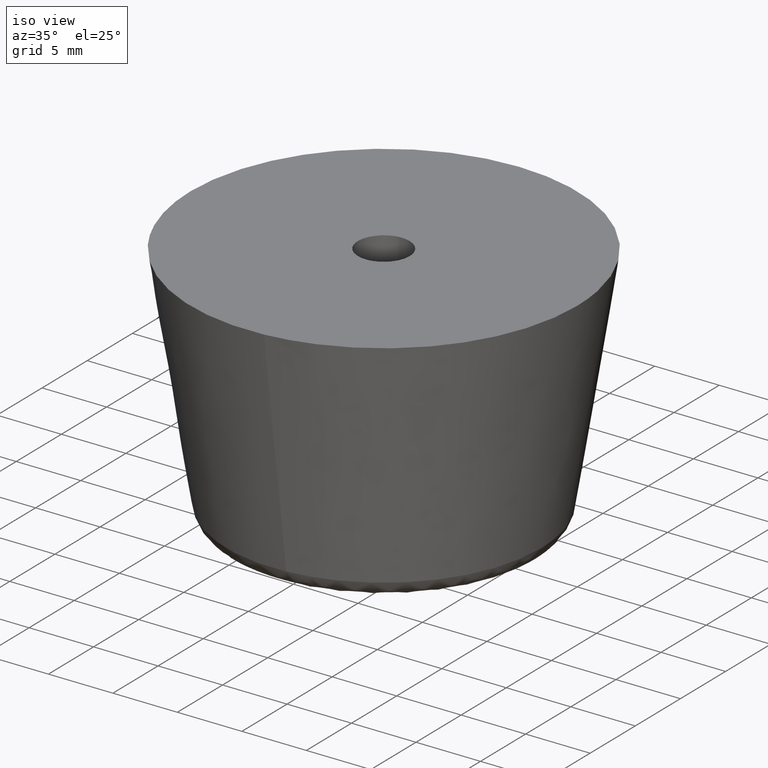
[diagram: clean part render]
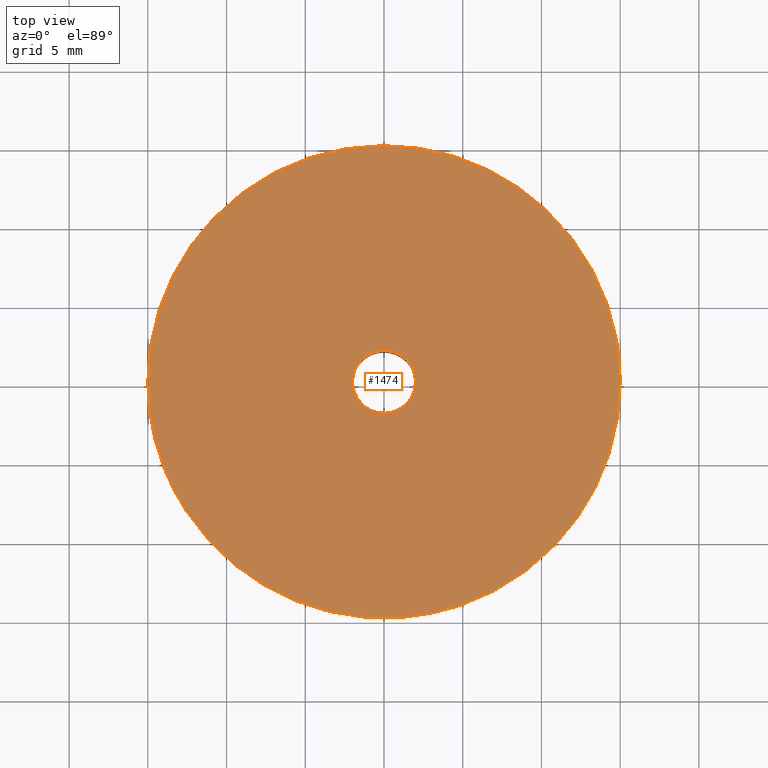
[diagram: tour spotlight — one face highlighted and labeled with its STEP entity id]
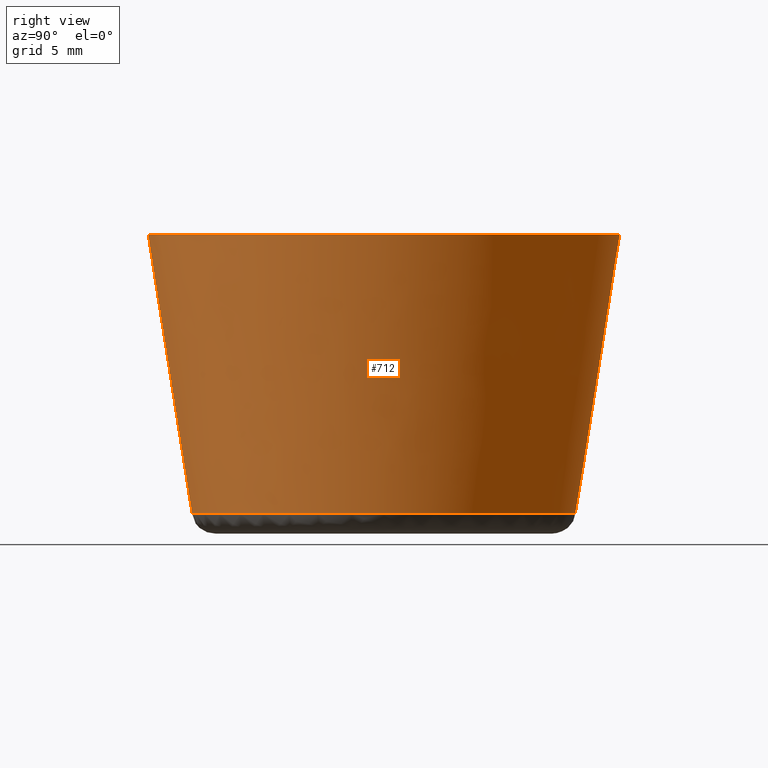
[diagram: tour spotlight — one face highlighted and labeled with its STEP entity id]
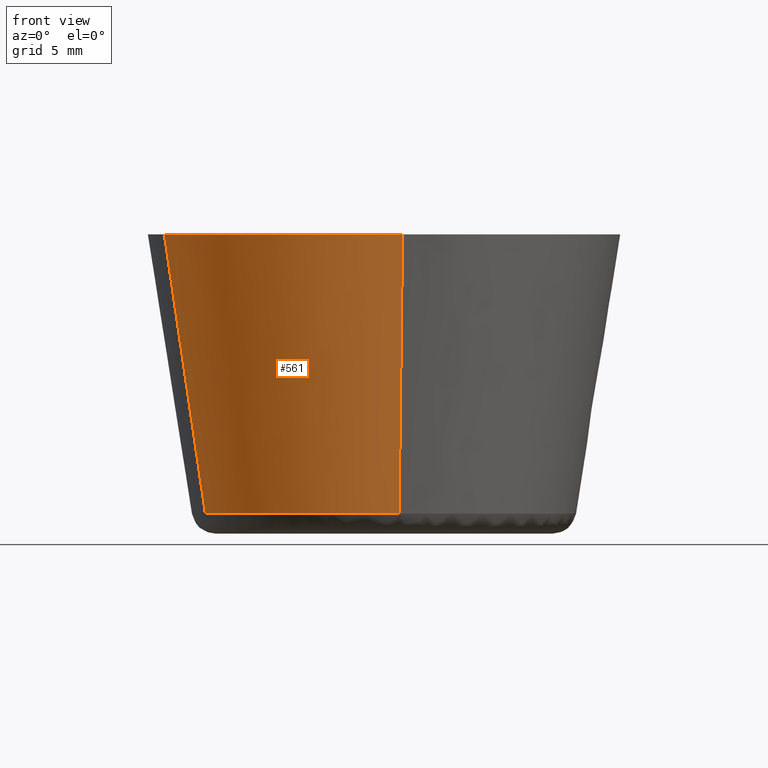
[diagram: tour spotlight — one face highlighted and labeled with its STEP entity id]
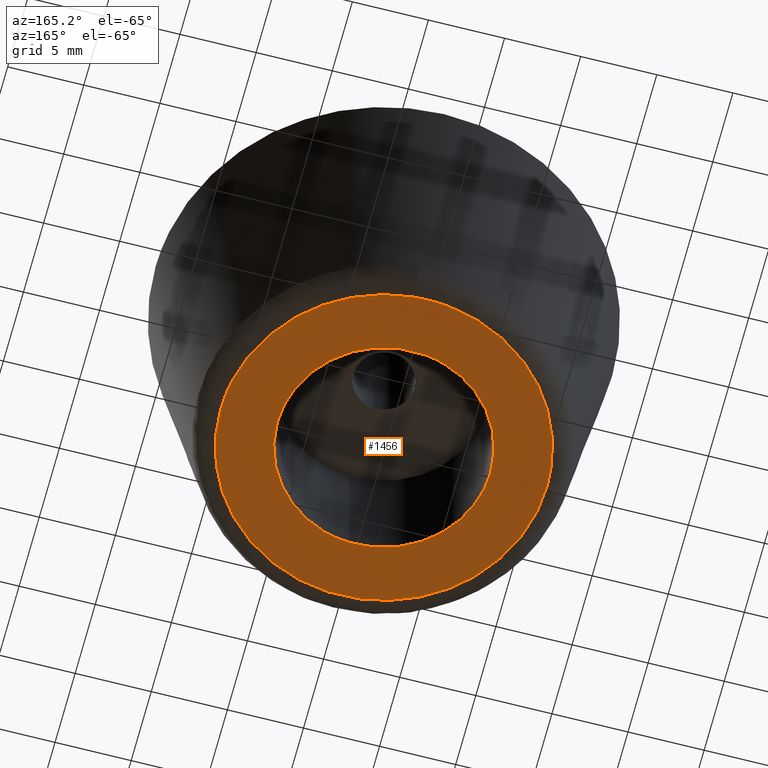
[diagram: tour spotlight — one face highlighted and labeled with its STEP entity id]
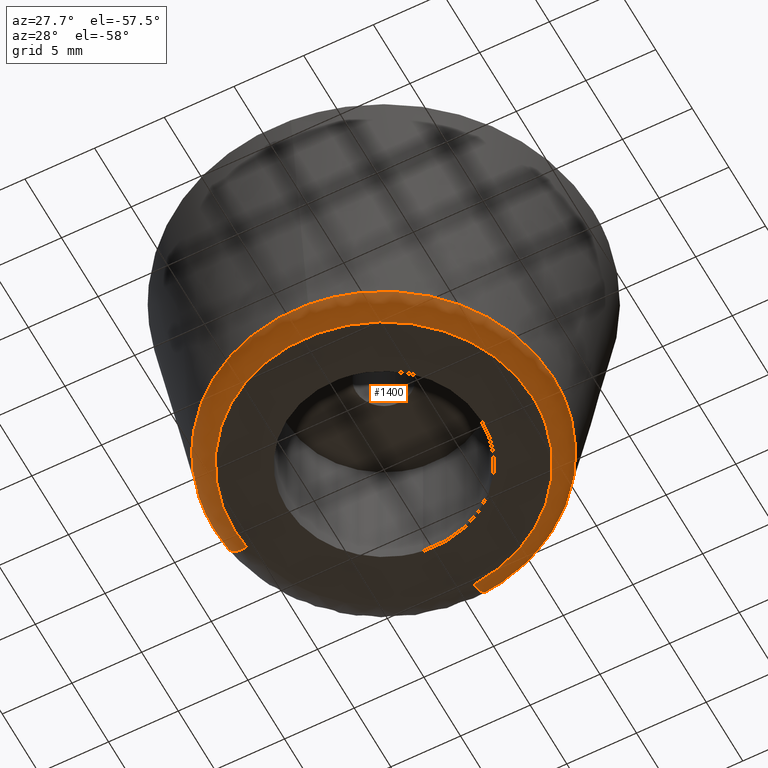
[diagram: tour spotlight — one face highlighted and labeled with its STEP entity id]
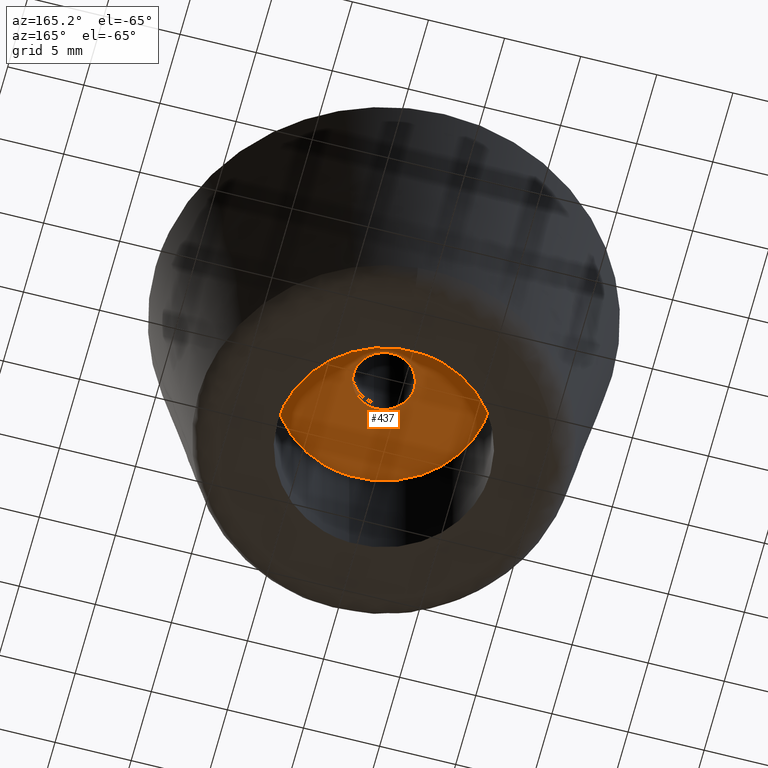
[diagram: tour spotlight — one face highlighted and labeled with its STEP entity id]
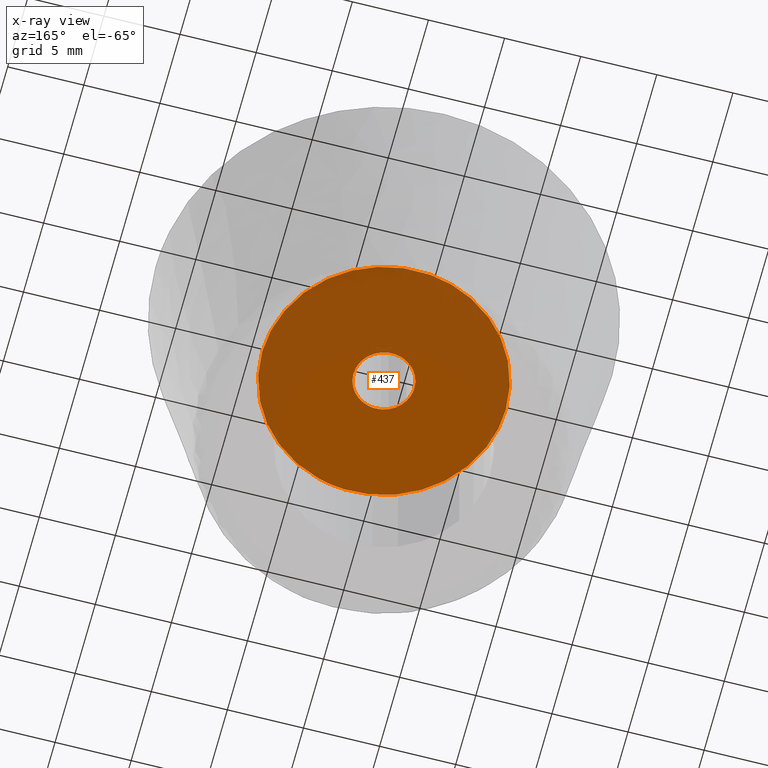
[diagram: x-ray of the same camera — body ghosted, this tour face saturated]
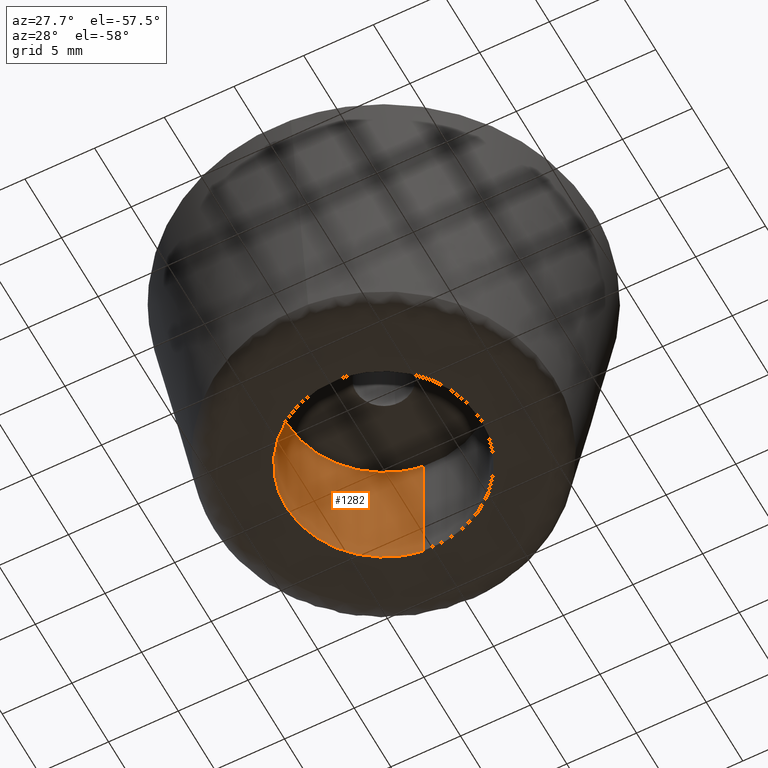
[diagram: tour spotlight — one face highlighted and labeled with its STEP entity id]
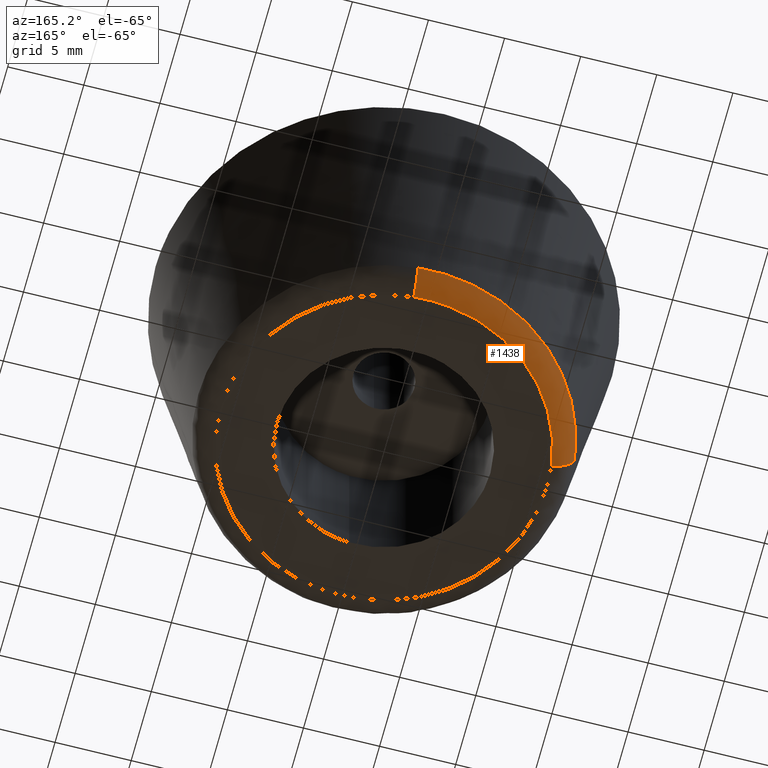
[diagram: tour spotlight — one face highlighted and labeled with its STEP entity id]
A machine part: a face-by-face anatomy tour. The part has 20 B-rep faces; the first image is the clean iso view, then the 8 largest visible faces are spotlighted one at a time (largest first), each with its STEP entity span.

Face 1 — top view, entity #1474. In plain terms, the highlighted face is a freeform B-spline surface patch.
Definition (entity closure, byte-faithful):
#530=CARTESIAN_POINT('',(1.176877791732224,-14.953760115481840,18.999996395936360));
#531=VERTEX_POINT('',#530);
#537=CARTESIAN_POINT('',(-13.947967667521180,-5.518530535782192,18.999996058260368));
#538=VERTEX_POINT('',#537);
#539=CARTESIAN_POINT('',(1.176877791732225,-14.953760115481847,18.999996395936357));
#540=CARTESIAN_POINT('',(0.589347257320484,-14.999999441685631,18.999996386957410));
#541=CARTESIAN_POINT('',(-0.000000010586503,-14.999999451175871,18.999996377485669));
#542=CARTESIAN_POINT('',(-10.196613008125857,-14.999999615371651,18.999996213610054));
#543=CARTESIAN_POINT('',(-13.947967667521178,-5.518530535782192,18.999996058260368));
#551=(BOUNDED_CURVE()B_SPLINE_CURVE(2,(#539,#540,#541,#542,#543),.UNSPECIFIED.,.F.,.U.)B_SPLINE_CURVE_WITH_KNOTS((3,2,3),(0.736331399214759,0.750000000000000,0.937532605535001),.UNSPECIFIED.)CURVE()GEOMETRIC_REPRESENTATION_ITEM()RATIONAL_B_SPLINE_CURVE((0.969723561905003,0.983986238077338,1.0,0.780291886129520,0.890203252669535))REPRESENTATION_ITEM(''));
#552=EDGE_CURVE('',#531,#538,#551,.T.);
#604=CARTESIAN_POINT('',(-15.0,0.0,19.0));
#605=VERTEX_POINT('',#604);
#606=CARTESIAN_POINT('',(-13.947967667521178,-5.518530535782192,18.999996058260368));
#607=CARTESIAN_POINT('',(-14.999999710635088,-2.859542937625609,18.999998029130182));
#608=CARTESIAN_POINT('',(-15.0,0.0,19.0));
#616=(BOUNDED_CURVE()B_SPLINE_CURVE(2,(#606,#607,#608),.UNSPECIFIED.,.F.,.U.)B_SPLINE_CURVE_WITH_KNOTS((3,3),(0.937532605535001,1.0),.UNSPECIFIED.)CURVE()GEOMETRIC_REPRESENTATION_ITEM()RATIONAL_B_SPLINE_CURVE((0.890203252669535,0.926814895057027,1.0))REPRESENTATION_ITEM(''));
#617=EDGE_CURVE('',#538,#605,#616,.T.);
#619=CARTESIAN_POINT('',(15.0,0.0,19.0));
#620=VERTEX_POINT('',#619);
#621=CARTESIAN_POINT('',(-15.0,0.0,19.0));
#622=CARTESIAN_POINT('',(-14.999999999999996,14.999999999999996,18.999999999999996));
#623=CARTESIAN_POINT('',(0.0,15.0,19.0));
#624=CARTESIAN_POINT('',(14.999999999999996,14.999999999999996,18.999999999999996));
#625=CARTESIAN_POINT('',(15.0,0.0,19.0));
#633=(BOUNDED_CURVE()B_SPLINE_CURVE(2,(#621,#622,#623,#624,#625),.UNSPECIFIED.,.F.,.U.)B_SPLINE_CURVE_WITH_KNOTS((3,2,3),(0.0,0.250000000000000,0.500000000000000),.UNSPECIFIED.)CURVE()GEOMETRIC_REPRESENTATION_ITEM()RATIONAL_B_SPLINE_CURVE((1.0,0.707106781186547,1.0,0.707106781186547,1.0))REPRESENTATION_ITEM(''));
#634=EDGE_CURVE('',#605,#620,#633,.T.);
#636=CARTESIAN_POINT('',(15.0,0.0,19.0));
#637=CARTESIAN_POINT('',(14.999999977675996,-13.865865089788093,18.999998197968186));
#638=CARTESIAN_POINT('',(1.176877791732225,-14.953760115481847,18.999996395936357));
#646=(BOUNDED_CURVE()B_SPLINE_CURVE(2,(#636,#637,#638),.UNSPECIFIED.,.F.,.U.)B_SPLINE_CURVE_WITH_KNOTS((3,3),(0.500000000000000,0.736331399214759),.UNSPECIFIED.)CURVE()GEOMETRIC_REPRESENTATION_ITEM()RATIONAL_B_SPLINE_CURVE((1.0,0.723120543109209,0.969723561905003))REPRESENTATION_ITEM(''));
#647=EDGE_CURVE('',#620,#531,#646,.T.);
#739=CARTESIAN_POINT('',(-0.236068469328979,1.986019052725495,19.0));
#740=VERTEX_POINT('',#739);
#741=CARTESIAN_POINT('',(2.0,0.0,19.0));
#742=VERTEX_POINT('',#741);
#743=CARTESIAN_POINT('',(-0.236068469328979,1.986019052725495,19.0));
#744=CARTESIAN_POINT('',(-0.118448239319446,2.000000000000000,19.000000000000004));
#745=CARTESIAN_POINT('',(0.0,2.0,19.0));
#746=CARTESIAN_POINT('',(2.000000000000000,2.000000000000000,18.999999999999993));
#747=CARTESIAN_POINT('',(2.0,0.0,19.0));
#755=(BOUNDED_CURVE()B_SPLINE_CURVE(2,(#743,#744,#745,#746,#747),.UNSPECIFIED.,.F.,.U.)B_SPLINE_CURVE_WITH_KNOTS((3,2,3),(0.229562473513013,0.250000000000000,0.500000000000000),.UNSPECIFIED.)CURVE()GEOMETRIC_REPRESENTATION_ITEM()RATIONAL_B_SPLINE_CURVE((0.956026754182728,0.976055948330564,1.0,0.707106781186548,1.0))REPRESENTATION_ITEM(''));
#756=EDGE_CURVE('',#740,#742,#755,.T.);
#797=CARTESIAN_POINT('',(0.122093391733323,-1.996269822364052,18.999999999999972));
#798=VERTEX_POINT('',#797);
#804=CARTESIAN_POINT('',(2.0,0.0,19.0));
#805=CARTESIAN_POINT('',(2.000000000000000,-1.881415615489676,19.000000000000004));
#806=CARTESIAN_POINT('',(0.122093391733323,-1.996269822364053,18.999999999999975));
#814=(BOUNDED_CURVE()B_SPLINE_CURVE(2,(#804,#805,#806),.UNSPECIFIED.,.F.,.U.)B_SPLINE_CURVE_WITH_KNOTS((3,3),(0.500000000000000,0.739333280955538),.UNSPECIFIED.)CURVE()GEOMETRIC_REPRESENTATION_ITEM()RATIONAL_B_SPLINE_CURVE((1.0,0.719603619886993,0.976072724738002))REPRESENTATION_ITEM(''));
#815=EDGE_CURVE('',#742,#798,#814,.T.);
#838=CARTESIAN_POINT('',(-2.0,0.0,19.0));
#839=VERTEX_POINT('',#838);
#840=CARTESIAN_POINT('',(-2.0,0.0,19.0));
#841=CARTESIAN_POINT('',(-2.000000000000000,1.776349051874881,18.999999999999996));
#842=CARTESIAN_POINT('',(-0.236068469328979,1.986019052725495,19.000000000000004));
#850=(BOUNDED_CURVE()B_SPLINE_CURVE(2,(#840,#841,#842),.UNSPECIFIED.,.F.,.U.)B_SPLINE_CURVE_WITH_KNOTS((3,3),(0.0,0.229562473513013),.UNSPECIFIED.)CURVE()GEOMETRIC_REPRESENTATION_ITEM()RATIONAL_B_SPLINE_CURVE((1.0,0.731050832855983,0.956026754182728))REPRESENTATION_ITEM(''));
#851=EDGE_CURVE('',#839,#740,#850,.T.);
#853=CARTESIAN_POINT('',(0.122093391733323,-1.996269822364053,18.999999999999975));
#854=CARTESIAN_POINT('',(0.061103677759777,-2.0,19.000000000000007));
#855=CARTESIAN_POINT('',(0.0,-2.0,19.0));
#856=CARTESIAN_POINT('',(-2.000000000000000,-2.000000000000000,18.999999999999993));
#857=CARTESIAN_POINT('',(-2.0,0.0,19.0));
#865=(BOUNDED_CURVE()B_SPLINE_CURVE(2,(#853,#854,#855,#856,#857),.UNSPECIFIED.,.F.,.U.)B_SPLINE_CURVE_WITH_KNOTS((3,2,3),(0.739333280955538,0.750000000000000,1.0),.UNSPECIFIED.)CURVE()GEOMETRIC_REPRESENTATION_ITEM()RATIONAL_B_SPLINE_CURVE((0.976072724738002,0.987503161299555,1.0,0.707106781186548,1.0))REPRESENTATION_ITEM(''));
#866=EDGE_CURVE('',#798,#839,#865,.T.);
#1457=CARTESIAN_POINT('',(16.498499941854181,-16.498186500424151,19.0));
#1458=CARTESIAN_POINT('',(-16.498500746516889,-16.498186500424151,19.0));
#1459=CARTESIAN_POINT('',(16.498499941854181,16.498485834950209,19.0));
#1460=CARTESIAN_POINT('',(-16.498500746516889,16.498485834950209,19.0));
#1461=B_SPLINE_SURFACE_WITH_KNOTS('',1,1,((#1457,#1459),(#1458,#1460)),.UNSPECIFIED.,.F.,.F.,.U.,(2,2),(2,2),(0.0,32.997000688371060),(0.0,32.996672335374363),.UNSPECIFIED.);
#1462=ORIENTED_EDGE('',*,*,#617,.F.);
#1463=ORIENTED_EDGE('',*,*,#552,.F.);
#1464=ORIENTED_EDGE('',*,*,#647,.F.);
#1465=ORIENTED_EDGE('',*,*,#634,.F.);
#1466=EDGE_LOOP('',(#1462,#1463,#1464,#1465));
#1467=FACE_OUTER_BOUND('',#1466,.T.);
#1468=ORIENTED_EDGE('',*,*,#815,.T.);
#1469=ORIENTED_EDGE('',*,*,#866,.T.);
#1470=ORIENTED_EDGE('',*,*,#851,.T.);
#1471=ORIENTED_EDGE('',*,*,#756,.T.);
#1472=EDGE_LOOP('',(#1468,#1469,#1470,#1471));
#1473=FACE_BOUND('',#1472,.T.);
#1474=ADVANCED_FACE('',(#1467,#1473),#1461,.F.);

Face 2 — right view, entity #712. In plain terms, the highlighted face is a freeform B-spline surface patch.
Definition (entity closure, byte-faithful):
#511=CARTESIAN_POINT('',(0.957188914024746,-12.162295832136421,1.266054161330059));
#512=VERTEX_POINT('',#511);
#513=CARTESIAN_POINT('',(-11.344257446646690,-4.488370761829868,1.266053794279891));
#514=VERTEX_POINT('',#513);
#530=CARTESIAN_POINT('',(1.176877791732224,-14.953760115481840,18.999996395936360));
#531=VERTEX_POINT('',#530);
#532=CARTESIAN_POINT('',(0.957188914024746,-12.162295832136421,1.266054161330059));
#533=CARTESIAN_POINT('',(1.176877791732224,-14.953760115481840,18.999996395936360));
#534=QUASI_UNIFORM_CURVE('',1,(#532,#533),.UNSPECIFIED.,.F.,.U.);
#535=EDGE_CURVE('',#512,#531,#534,.T.);
#537=CARTESIAN_POINT('',(-13.947967667521180,-5.518530535782192,18.999996058260368));
#538=VERTEX_POINT('',#537);
#554=CARTESIAN_POINT('',(-11.344257446646690,-4.488370761829868,1.266053794279891));
#555=CARTESIAN_POINT('',(-13.947967667521180,-5.518530535782192,18.999996058260368));
#556=QUASI_UNIFORM_CURVE('',1,(#554,#555),.UNSPECIFIED.,.F.,.U.);
#557=EDGE_CURVE('',#514,#538,#556,.T.);
#562=CARTESIAN_POINT('',(0.951701110803747,-12.092509161517210,0.822707399999999));
#563=CARTESIAN_POINT('',(13.044210272320953,-11.140808050713460,0.822707399999999));
#564=CARTESIAN_POINT('',(12.092509161517210,0.951701110803747,0.822707399999999));
#565=CARTESIAN_POINT('',(11.140808050713460,13.044210272320953,0.822707399999999));
#566=CARTESIAN_POINT('',(-0.951701110803747,12.092509161517210,0.822707399999999));
#567=CARTESIAN_POINT('',(-13.044210272320953,11.140808050713460,0.822707399999999));
#568=CARTESIAN_POINT('',(-12.092509161517210,-0.951701110803747,0.822707399999999));
#569=CARTESIAN_POINT('',(-11.949543569191624,-2.768251197121068,0.822707399999999));
#570=CARTESIAN_POINT('',(-11.279163913218644,-4.462619661636982,0.822707399999999));
#571=CARTESIAN_POINT('',(1.182516069045532,-15.025291277108909,19.454432315000009));
#572=CARTESIAN_POINT('',(16.207807346154446,-13.842775208063376,19.454432315000005));
#573=CARTESIAN_POINT('',(15.025291277108909,1.182516069045532,19.454432315000009));
#574=CARTESIAN_POINT('',(13.842775208063376,16.207807346154446,19.454432315000005));
#575=CARTESIAN_POINT('',(-1.182516069045532,15.025291277108909,19.454432315000009));
#576=CARTESIAN_POINT('',(-16.207807346154446,13.842775208063376,19.454432315000005));
#577=CARTESIAN_POINT('',(-15.025291277108909,-1.182516069045532,19.454432315000009));
#578=CARTESIAN_POINT('',(-14.847652406746720,-3.439631924970223,19.454432315000009));
#579=CARTESIAN_POINT('',(-14.014686356218773,-5.544933593139907,19.454432314999998));
#587=(BOUNDED_SURFACE()B_SPLINE_SURFACE(2,1,((#562,#571),(#563,#572),(#564,#573),(#565,#574),(#566,#575),(#567,#576),(#568,#577),(#569,#578),(#570,#579)),.UNSPECIFIED.,.F.,.F.,.U.)B_SPLINE_SURFACE_WITH_KNOTS((3,2,2,2,3),(2,2),(0.0,24.971697110648229,49.943394221296458,74.915091331944680,79.909430754074336),(0.0,18.862546482135301),.UNSPECIFIED.)GEOMETRIC_REPRESENTATION_ITEM()RATIONAL_B_SPLINE_SURFACE(((1.0,1.0),(0.707106781186548,0.707106781186548),(1.0,1.0),(0.707106781186548,0.707106781186548),(1.0,1.0),(0.707106781186548,0.707106781186548),(1.0,1.0),(0.941421356237310,0.941421356237310),(0.906274169979695,0.906274169979695)))REPRESENTATION_ITEM('')SURFACE());
#588=CARTESIAN_POINT('',(-12.199904000000000,0.0,1.266056000000000));
#589=VERTEX_POINT('',#588);
#590=CARTESIAN_POINT('',(-11.344257446646690,-4.488370761829868,1.266053794279891));
#591=CARTESIAN_POINT('',(-12.199903838077152,-2.325743978457342,1.266054897139945));
#592=CARTESIAN_POINT('',(-12.199904000000000,0.0,1.266056000000000));
#600=(BOUNDED_CURVE()B_SPLINE_CURVE(2,(#590,#591,#592),.UNSPECIFIED.,.F.,.U.)B_SPLINE_CURVE_WITH_KNOTS((3,3),(0.937532589075160,1.0),.UNSPECIFIED.)CURVE()GEOMETRIC_REPRESENTATION_ITEM()RATIONAL_B_SPLINE_CURVE((0.890203233375574,0.926814875773124,1.0))REPRESENTATION_ITEM(''));
#601=EDGE_CURVE('',#514,#589,#600,.T.);
#602=ORIENTED_EDGE('',*,*,#601,.F.);
#603=ORIENTED_EDGE('',*,*,#557,.T.);
#604=CARTESIAN_POINT('',(-15.0,0.0,19.0));
#605=VERTEX_POINT('',#604);
#606=CARTESIAN_POINT('',(-13.947967667521178,-5.518530535782192,18.999996058260368));
#607=CARTESIAN_POINT('',(-14.999999710635088,-2.859542937625609,18.999998029130182));
#608=CARTESIAN_POINT('',(-15.0,0.0,19.0));
#616=(BOUNDED_CURVE()B_SPLINE_CURVE(2,(#606,#607,#608),.UNSPECIFIED.,.F.,.U.)B_SPLINE_CURVE_WITH_KNOTS((3,3),(0.937532605535001,1.0),.UNSPECIFIED.)CURVE()GEOMETRIC_REPRESENTATION_ITEM()RATIONAL_B_SPLINE_CURVE((0.890203252669535,0.926814895057027,1.0))REPRESENTATION_ITEM(''));
#617=EDGE_CURVE('',#538,#605,#616,.T.);
#618=ORIENTED_EDGE('',*,*,#617,.T.);
#619=CARTESIAN_POINT('',(15.0,0.0,19.0));
#620=VERTEX_POINT('',#619);
#621=CARTESIAN_POINT('',(-15.0,0.0,19.0));
#622=CARTESIAN_POINT('',(-14.999999999999996,14.999999999999996,18.999999999999996));
#623=CARTESIAN_POINT('',(0.0,15.0,19.0));
#624=CARTESIAN_POINT('',(14.999999999999996,14.999999999999996,18.999999999999996));
#625=CARTESIAN_POINT('',(15.0,0.0,19.0));
#633=(BOUNDED_CURVE()B_SPLINE_CURVE(2,(#621,#622,#623,#624,#625),.UNSPECIFIED.,.F.,.U.)B_SPLINE_CURVE_WITH_KNOTS((3,2,3),(0.0,0.250000000000000,0.500000000000000),.UNSPECIFIED.)CURVE()GEOMETRIC_REPRESENTATION_ITEM()RATIONAL_B_SPLINE_CURVE((1.0,0.707106781186547,1.0,0.707106781186547,1.0))REPRESENTATION_ITEM(''));
#634=EDGE_CURVE('',#605,#620,#633,.T.);
#635=ORIENTED_EDGE('',*,*,#634,.T.);
#636=CARTESIAN_POINT('',(15.0,0.0,19.0));
#637=CARTESIAN_POINT('',(14.999999977675996,-13.865865089788093,18.999998197968186));
#638=CARTESIAN_POINT('',(1.176877791732225,-14.953760115481847,18.999996395936357));
#646=(BOUNDED_CURVE()B_SPLINE_CURVE(2,(#636,#637,#638),.UNSPECIFIED.,.F.,.U.)B_SPLINE_CURVE_WITH_KNOTS((3,3),(0.500000000000000,0.736331399214759),.UNSPECIFIED.)CURVE()GEOMETRIC_REPRESENTATION_ITEM()RATIONAL_B_SPLINE_CURVE((1.0,0.723120543109209,0.969723561905003))REPRESENTATION_ITEM(''));
#647=EDGE_CURVE('',#620,#531,#646,.T.);
#648=ORIENTED_EDGE('',*,*,#647,.T.);
#649=ORIENTED_EDGE('',*,*,#535,.F.);
#650=CARTESIAN_POINT('',(12.199904000000000,0.0,1.266056000000000));
#651=VERTEX_POINT('',#650);
#652=CARTESIAN_POINT('',(12.199904000000000,0.0,1.266056000000000));
#653=CARTESIAN_POINT('',(12.199903988611041,-11.277479296628552,1.266055080665030));
#654=CARTESIAN_POINT('',(0.957188914024746,-12.162295832136412,1.266054161330059));
#662=(BOUNDED_CURVE()B_SPLINE_CURVE(2,(#652,#653,#654),.UNSPECIFIED.,.F.,.U.)B_SPLINE_CURVE_WITH_KNOTS((3,3),(0.500000000000000,0.736331364045095),.UNSPECIFIED.)CURVE()GEOMETRIC_REPRESENTATION_ITEM()RATIONAL_B_SPLINE_CURVE((1.0,0.723120584313034,0.969723488508544))REPRESENTATION_ITEM(''));
#663=EDGE_CURVE('',#651,#512,#662,.T.);
#664=ORIENTED_EDGE('',*,*,#663,.F.);
#665=CARTESIAN_POINT('',(0.987191689687490,12.159897340991600,1.266056044159818));
#666=VERTEX_POINT('',#665);
#667=CARTESIAN_POINT('',(0.987191689687490,12.159897340991606,1.266056044159818));
#668=CARTESIAN_POINT('',(12.199903999999998,11.249602403097816,1.266056000000000));
#669=CARTESIAN_POINT('',(12.199904000000000,0.0,1.266056000000000));
#677=(BOUNDED_CURVE()B_SPLINE_CURVE(2,(#667,#668,#669),.UNSPECIFIED.,.F.,.U.)B_SPLINE_CURVE_WITH_KNOTS((3,3),(0.264091366876150,0.500000000000000),.UNSPECIFIED.)CURVE()GEOMETRIC_REPRESENTATION_ITEM()RATIONAL_B_SPLINE_CURVE((0.968842955716796,0.723615844393895,1.0))REPRESENTATION_ITEM(''));
#678=EDGE_CURVE('',#666,#651,#677,.T.);
#679=ORIENTED_EDGE('',*,*,#678,.F.);
#680=CARTESIAN_POINT('',(-12.083534031810270,1.681028279897632,1.266056044183165));
#681=VERTEX_POINT('',#680);
#682=CARTESIAN_POINT('',(-12.083534031810268,1.681028279897632,1.266056044183165));
#683=CARTESIAN_POINT('',(-10.620177029218109,12.199903999999998,1.266056000000000));
#684=CARTESIAN_POINT('',(0.0,12.199904000000000,1.266056000000000));
#685=CARTESIAN_POINT('',(0.494406494275795,12.199904000000000,1.266056000000001));
#686=CARTESIAN_POINT('',(0.987191689687490,12.159897340991600,1.266056044159819));
#694=(BOUNDED_CURVE()B_SPLINE_CURVE(2,(#682,#683,#684,#685,#686),.UNSPECIFIED.,.F.,.U.)B_SPLINE_CURVE_WITH_KNOTS((3,2,3),(0.023792609107088,0.250000000000000,0.264091366876150),.UNSPECIFIED.)CURVE()GEOMETRIC_REPRESENTATION_ITEM()RATIONAL_B_SPLINE_CURVE((0.949556158169242,0.734981556647928,1.0,0.983490936792653,0.968842955716795))REPRESENTATION_ITEM(''));
#695=EDGE_CURVE('',#681,#666,#694,.T.);
#696=ORIENTED_EDGE('',*,*,#695,.F.);
#697=CARTESIAN_POINT('',(-12.199904000000000,0.0,1.266056000000000));
#698=CARTESIAN_POINT('',(-12.199904000000004,0.844542022663018,1.266056000000000));
#699=CARTESIAN_POINT('',(-12.083534031810268,1.681028279897631,1.266056044183165));
#707=(BOUNDED_CURVE()B_SPLINE_CURVE(2,(#697,#698,#699),.UNSPECIFIED.,.F.,.U.)B_SPLINE_CURVE_WITH_KNOTS((3,3),(0.0,0.023792609107088),.UNSPECIFIED.)CURVE()GEOMETRIC_REPRESENTATION_ITEM()RATIONAL_B_SPLINE_CURVE((1.0,0.972125224538619,0.949556158169242))REPRESENTATION_ITEM(''));
#708=EDGE_CURVE('',#589,#681,#707,.T.);
#709=ORIENTED_EDGE('',*,*,#708,.F.);
#710=EDGE_LOOP('',(#602,#603,#618,#635,#648,#649,#664,#679,#696,#709));
#711=FACE_OUTER_BOUND('',#710,.T.);
#712=ADVANCED_FACE('',(#711),#587,.T.);

Face 3 — front view, entity #561. In plain terms, the highlighted face is a freeform B-spline surface patch.
Definition (entity closure, byte-faithful):
#497=CARTESIAN_POINT('',(-11.279163913218644,-4.462619661636982,0.822707399999999));
#498=CARTESIAN_POINT('',(-7.982197799690621,-12.795622254371716,0.822707399999999));
#499=CARTESIAN_POINT('',(0.951701110803747,-12.092509161517210,0.822707399999999));
#500=CARTESIAN_POINT('',(-14.014686356218773,-5.544933593139907,19.454432314999998));
#501=CARTESIAN_POINT('',(-9.918110904023626,-15.898929566712855,19.454432315000005));
#502=CARTESIAN_POINT('',(1.182516069045532,-15.025291277108909,19.454432315000009));
#510=(BOUNDED_SURFACE()B_SPLINE_SURFACE(2,1,((#497,#500),(#498,#501),(#499,#502)),.UNSPECIFIED.,.F.,.F.,.U.)B_SPLINE_SURFACE_WITH_KNOTS((3,3),(2,2),(0.0,19.841189292702420),(0.0,18.862546482135301),.UNSPECIFIED.)GEOMETRIC_REPRESENTATION_ITEM()RATIONAL_B_SPLINE_SURFACE(((0.906274169979695,0.906274169979695),(0.765685424949238,0.765685424949238),(1.0,1.0)))REPRESENTATION_ITEM('')SURFACE());
#511=CARTESIAN_POINT('',(0.957188914024746,-12.162295832136421,1.266054161330059));
#512=VERTEX_POINT('',#511);
#513=CARTESIAN_POINT('',(-11.344257446646690,-4.488370761829868,1.266053794279891));
#514=VERTEX_POINT('',#513);
#515=CARTESIAN_POINT('',(0.957188914024746,-12.162295832136412,1.266054161330059));
#516=CARTESIAN_POINT('',(0.479333260141173,-12.199903714866691,1.266054151570009));
#517=CARTESIAN_POINT('',(-3.838272E-009,-12.199903719390910,1.266054141274304));
#518=CARTESIAN_POINT('',(-8.293179128497764,-12.199903797666687,1.266053963143287));
#519=CARTESIAN_POINT('',(-11.344257446646690,-4.488370761829868,1.266053794279891));
#527=(BOUNDED_CURVE()B_SPLINE_CURVE(2,(#515,#516,#517,#518,#519),.UNSPECIFIED.,.F.,.U.)B_SPLINE_CURVE_WITH_KNOTS((3,2,3),(0.736331364045095,0.750000000000000,0.937532589075160),.UNSPECIFIED.)CURVE()GEOMETRIC_REPRESENTATION_ITEM()RATIONAL_B_SPLINE_CURVE((0.969723488508544,0.983986196873514,1.0,0.780291905413423,0.890203233375574))REPRESENTATION_ITEM(''));
#528=EDGE_CURVE('',#512,#514,#527,.T.);
#529=ORIENTED_EDGE('',*,*,#528,.F.);
#530=CARTESIAN_POINT('',(1.176877791732224,-14.953760115481840,18.999996395936360));
#531=VERTEX_POINT('',#530);
#532=CARTESIAN_POINT('',(0.957188914024746,-12.162295832136421,1.266054161330059));
#533=CARTESIAN_POINT('',(1.176877791732224,-14.953760115481840,18.999996395936360));
#534=QUASI_UNIFORM_CURVE('',1,(#532,#533),.UNSPECIFIED.,.F.,.U.);
#535=EDGE_CURVE('',#512,#531,#534,.T.);
#536=ORIENTED_EDGE('',*,*,#535,.T.);
#537=CARTESIAN_POINT('',(-13.947967667521180,-5.518530535782192,18.999996058260368));
#538=VERTEX_POINT('',#537);
#539=CARTESIAN_POINT('',(1.176877791732225,-14.953760115481847,18.999996395936357));
#540=CARTESIAN_POINT('',(0.589347257320484,-14.999999441685631,18.999996386957410));
#541=CARTESIAN_POINT('',(-0.000000010586503,-14.999999451175871,18.999996377485669));
#542=CARTESIAN_POINT('',(-10.196613008125857,-14.999999615371651,18.999996213610054));
#543=CARTESIAN_POINT('',(-13.947967667521178,-5.518530535782192,18.999996058260368));
#551=(BOUNDED_CURVE()B_SPLINE_CURVE(2,(#539,#540,#541,#542,#543),.UNSPECIFIED.,.F.,.U.)B_SPLINE_CURVE_WITH_KNOTS((3,2,3),(0.736331399214759,0.750000000000000,0.937532605535001),.UNSPECIFIED.)CURVE()GEOMETRIC_REPRESENTATION_ITEM()RATIONAL_B_SPLINE_CURVE((0.969723561905003,0.983986238077338,1.0,0.780291886129520,0.890203252669535))REPRESENTATION_ITEM(''));
#552=EDGE_CURVE('',#531,#538,#551,.T.);
#553=ORIENTED_EDGE('',*,*,#552,.T.);
#554=CARTESIAN_POINT('',(-11.344257446646690,-4.488370761829868,1.266053794279891));
#555=CARTESIAN_POINT('',(-13.947967667521180,-5.518530535782192,18.999996058260368));
#556=QUASI_UNIFORM_CURVE('',1,(#554,#555),.UNSPECIFIED.,.F.,.U.);
#557=EDGE_CURVE('',#514,#538,#556,.T.);
#558=ORIENTED_EDGE('',*,*,#557,.F.);
#559=EDGE_LOOP('',(#529,#536,#553,#558));
#560=FACE_OUTER_BOUND('',#559,.T.);
#561=ADVANCED_FACE('',(#560),#510,.T.);

Face 4 — auxiliary view, entity #1456. In plain terms, the highlighted face is a freeform B-spline surface patch.
Definition (entity closure, byte-faithful):
#1115=CARTESIAN_POINT('',(-0.826229466061572,6.951067894166087,-2.011735E-014));
#1116=VERTEX_POINT('',#1115);
#1117=CARTESIAN_POINT('',(7.0,0.0,0.0));
#1118=VERTEX_POINT('',#1117);
#1119=CARTESIAN_POINT('',(-0.826229466061572,6.951067894166087,-2.011735E-014));
#1120=CARTESIAN_POINT('',(-0.414563695504101,7.0,0.0));
#1121=CARTESIAN_POINT('',(0.0,7.0,0.0));
#1122=CARTESIAN_POINT('',(6.999999999999999,6.999999999999999,0.0));
#1123=CARTESIAN_POINT('',(7.0,0.0,0.0));
#1131=(BOUNDED_CURVE()B_SPLINE_CURVE(2,(#1119,#1120,#1121,#1122,#1123),.UNSPECIFIED.,.F.,.U.)B_SPLINE_CURVE_WITH_KNOTS((3,2,3),(0.229562720940656,0.250000000000000,0.500000000000000),.UNSPECIFIED.)CURVE()GEOMETRIC_REPRESENTATION_ITEM()RATIONAL_B_SPLINE_CURVE((0.956027239151607,0.976056238210079,1.0,0.707106781186547,1.0))REPRESENTATION_ITEM(''));
#1132=EDGE_CURVE('',#1116,#1118,#1131,.T.);
#1134=CARTESIAN_POINT('',(0.427329286051951,-6.986944230575470,-2.534084E-014));
#1135=VERTEX_POINT('',#1134);
#1136=CARTESIAN_POINT('',(7.0,0.0,0.0));
#1137=CARTESIAN_POINT('',(7.000000000000001,-6.584952373920931,0.0));
#1138=CARTESIAN_POINT('',(0.427329286051951,-6.986944230575470,-2.534084E-014));
#1146=(BOUNDED_CURVE()B_SPLINE_CURVE(2,(#1136,#1137,#1138),.UNSPECIFIED.,.F.,.U.)B_SPLINE_CURVE_WITH_KNOTS((3,3),(0.500000000000000,0.739333221315991),.UNSPECIFIED.)CURVE()GEOMETRIC_REPRESENTATION_ITEM()RATIONAL_B_SPLINE_CURVE((1.0,0.719603689759067,0.976072596918779))REPRESENTATION_ITEM(''));
#1147=EDGE_CURVE('',#1118,#1135,#1146,.T.);
#1218=CARTESIAN_POINT('',(-7.0,0.0,0.0));
#1219=VERTEX_POINT('',#1218);
#1220=CARTESIAN_POINT('',(-7.0,0.0,0.0));
#1221=CARTESIAN_POINT('',(-6.999999999999999,6.217230847908600,0.0));
#1222=CARTESIAN_POINT('',(-0.826229466061572,6.951067894166087,-2.011735E-014));
#1230=(BOUNDED_CURVE()B_SPLINE_CURVE(2,(#1220,#1221,#1222),.UNSPECIFIED.,.F.,.U.)B_SPLINE_CURVE_WITH_KNOTS((3,3),(0.0,0.229562720940656),.UNSPECIFIED.)CURVE()GEOMETRIC_REPRESENTATION_ITEM()RATIONAL_B_SPLINE_CURVE((1.0,0.731050542976468,0.956027239151607))REPRESENTATION_ITEM(''));
#1231=EDGE_CURVE('',#1219,#1116,#1230,.T.);
#1265=CARTESIAN_POINT('',(0.427329286051951,-6.986944230575470,-2.534084E-014));
#1266=CARTESIAN_POINT('',(0.213864083037262,-7.0,0.0));
#1267=CARTESIAN_POINT('',(0.0,-7.0,0.0));
#1268=CARTESIAN_POINT('',(-6.999999999999999,-6.999999999999999,0.0));
#1269=CARTESIAN_POINT('',(-7.0,0.0,0.0));
#1277=(BOUNDED_CURVE()B_SPLINE_CURVE(2,(#1265,#1266,#1267,#1268,#1269),.UNSPECIFIED.,.F.,.U.)B_SPLINE_CURVE_WITH_KNOTS((3,2,3),(0.739333221315991,0.750000000000000,1.0),.UNSPECIFIED.)CURVE()GEOMETRIC_REPRESENTATION_ITEM()RATIONAL_B_SPLINE_CURVE((0.976072596918779,0.987503091427480,1.0,0.707106781186547,1.0))REPRESENTATION_ITEM(''));
#1278=EDGE_CURVE('',#1135,#1219,#1277,.T.);
#1318=CARTESIAN_POINT('',(0.867299976864796,10.683111286328881,1.902612E-016));
#1319=VERTEX_POINT('',#1318);
#1320=CARTESIAN_POINT('',(10.718259000000000,0.0,0.0));
#1321=VERTEX_POINT('',#1320);
#1322=CARTESIAN_POINT('',(0.867299976864796,10.683111286328876,1.902612E-016));
#1323=CARTESIAN_POINT('',(10.718259000000002,9.883368934888546,0.0));
#1324=CARTESIAN_POINT('',(10.718259000000000,0.0,0.0));
#1332=(BOUNDED_CURVE()B_SPLINE_CURVE(2,(#1322,#1323,#1324),.UNSPECIFIED.,.F.,.U.)B_SPLINE_CURVE_WITH_KNOTS((3,3),(0.264091366877852,0.500000000000000),.UNSPECIFIED.)CURVE()GEOMETRIC_REPRESENTATION_ITEM()RATIONAL_B_SPLINE_CURVE((0.968842955713257,0.723615844395889,1.0))REPRESENTATION_ITEM(''));
#1333=EDGE_CURVE('',#1319,#1321,#1332,.T.);
#1353=CARTESIAN_POINT('',(-10.616022090534811,1.476872023326135,1.859814E-016));
#1354=VERTEX_POINT('',#1353);
#1368=CARTESIAN_POINT('',(-10.718259000000000,0.0,0.0));
#1369=VERTEX_POINT('',#1368);
#1370=CARTESIAN_POINT('',(-10.718259000000000,0.0,0.0));
#1371=CARTESIAN_POINT('',(-10.718259000000003,0.741974702060796,0.0));
#1372=CARTESIAN_POINT('',(-10.616022090534816,1.476872023326136,1.859814E-016));
#1380=(BOUNDED_CURVE()B_SPLINE_CURVE(2,(#1370,#1371,#1372),.UNSPECIFIED.,.F.,.U.)B_SPLINE_CURVE_WITH_KNOTS((3,3),(0.0,0.023792609107814),.UNSPECIFIED.)CURVE()GEOMETRIC_REPRESENTATION_ITEM()RATIONAL_B_SPLINE_CURVE((1.0,0.972125224537768,0.949556158167864))REPRESENTATION_ITEM(''));
#1381=EDGE_CURVE('',#1369,#1354,#1380,.T.);
#1383=CARTESIAN_POINT('',(10.718259000000000,0.0,0.0));
#1384=CARTESIAN_POINT('',(10.718259000000002,-10.718259000000002,0.0));
#1385=CARTESIAN_POINT('',(0.0,-10.718259000000000,0.0));
#1386=CARTESIAN_POINT('',(-10.718259000000002,-10.718259000000002,0.0));
#1387=CARTESIAN_POINT('',(-10.718259000000000,0.0,0.0));
#1395=(BOUNDED_CURVE()B_SPLINE_CURVE(2,(#1383,#1384,#1385,#1386,#1387),.UNSPECIFIED.,.F.,.U.)B_SPLINE_CURVE_WITH_KNOTS((3,2,3),(0.500000000000000,0.750000000000000,1.0),.UNSPECIFIED.)CURVE()GEOMETRIC_REPRESENTATION_ITEM()RATIONAL_B_SPLINE_CURVE((1.0,0.707106781186547,1.0,0.707106781186547,1.0))REPRESENTATION_ITEM(''));
#1396=EDGE_CURVE('',#1321,#1369,#1395,.T.);
#1418=CARTESIAN_POINT('',(-10.616022090534816,1.476872023326136,1.859814E-016));
#1419=CARTESIAN_POINT('',(-9.330385552584110,10.718259000000002,0.0));
#1420=CARTESIAN_POINT('',(0.0,10.718259000000000,0.0));
#1421=CARTESIAN_POINT('',(0.434362176749984,10.718259000000005,0.0));
#1422=CARTESIAN_POINT('',(0.867299976864796,10.683111286328879,1.902612E-016));
#1430=(BOUNDED_CURVE()B_SPLINE_CURVE(2,(#1418,#1419,#1420,#1421,#1422),.UNSPECIFIED.,.F.,.U.)B_SPLINE_CURVE_WITH_KNOTS((3,2,3),(0.023792609107814,0.250000000000000,0.264091366877852),.UNSPECIFIED.)CURVE()GEOMETRIC_REPRESENTATION_ITEM()RATIONAL_B_SPLINE_CURVE((0.949556158167864,0.734981556648779,1.0,0.983490936790658,0.968842955713257))REPRESENTATION_ITEM(''));
#1431=EDGE_CURVE('',#1354,#1319,#1430,.T.);
#1439=CARTESIAN_POINT('',(-11.789013032551869,-11.788907021367921,0.0));
#1440=CARTESIAN_POINT('',(11.789013607524090,-11.788907021367921,0.0));
#1441=CARTESIAN_POINT('',(-11.789013032551869,11.786785250305270,0.0));
#1442=CARTESIAN_POINT('',(11.789013607524090,11.786785250305270,0.0));
#1443=B_SPLINE_SURFACE_WITH_KNOTS('',1,1,((#1439,#1441),(#1440,#1442)),.UNSPECIFIED.,.F.,.F.,.U.,(2,2),(2,2),(0.0,23.578026640075961),(0.0,23.575692271673191),.UNSPECIFIED.);
#1444=ORIENTED_EDGE('',*,*,#1381,.T.);
#1445=ORIENTED_EDGE('',*,*,#1431,.T.);
#1446=ORIENTED_EDGE('',*,*,#1333,.T.);
#1447=ORIENTED_EDGE('',*,*,#1396,.T.);
#1448=EDGE_LOOP('',(#1444,#1445,#1446,#1447));
#1449=FACE_OUTER_BOUND('',#1448,.T.);
#1450=ORIENTED_EDGE('',*,*,#1147,.F.);
#1451=ORIENTED_EDGE('',*,*,#1132,.F.);
#1452=ORIENTED_EDGE('',*,*,#1231,.F.);
#1453=ORIENTED_EDGE('',*,*,#1278,.F.);
#1454=EDGE_LOOP('',(#1450,#1451,#1452,#1453));
#1455=FACE_BOUND('',#1454,.T.);
#1456=ADVANCED_FACE('',(#1449,#1455),#1443,.F.);

Face 5 — auxiliary view, entity #1400. In plain terms, the highlighted face is a freeform B-spline surface patch.
Definition (entity closure, byte-faithful):
#511=CARTESIAN_POINT('',(0.957188914024746,-12.162295832136421,1.266054161330059));
#512=VERTEX_POINT('',#511);
#513=CARTESIAN_POINT('',(-11.344257446646690,-4.488370761829868,1.266053794279891));
#514=VERTEX_POINT('',#513);
#515=CARTESIAN_POINT('',(0.957188914024746,-12.162295832136412,1.266054161330059));
#516=CARTESIAN_POINT('',(0.479333260141173,-12.199903714866691,1.266054151570009));
#517=CARTESIAN_POINT('',(-3.838272E-009,-12.199903719390910,1.266054141274304));
#518=CARTESIAN_POINT('',(-8.293179128497764,-12.199903797666687,1.266053963143287));
#519=CARTESIAN_POINT('',(-11.344257446646690,-4.488370761829868,1.266053794279891));
#527=(BOUNDED_CURVE()B_SPLINE_CURVE(2,(#515,#516,#517,#518,#519),.UNSPECIFIED.,.F.,.U.)B_SPLINE_CURVE_WITH_KNOTS((3,2,3),(0.736331364045095,0.750000000000000,0.937532589075160),.UNSPECIFIED.)CURVE()GEOMETRIC_REPRESENTATION_ITEM()RATIONAL_B_SPLINE_CURVE((0.969723488508544,0.983986196873514,1.0,0.780291905413423,0.890203233375574))REPRESENTATION_ITEM(''));
#528=EDGE_CURVE('',#512,#514,#527,.T.);
#588=CARTESIAN_POINT('',(-12.199904000000000,0.0,1.266056000000000));
#589=VERTEX_POINT('',#588);
#590=CARTESIAN_POINT('',(-11.344257446646690,-4.488370761829868,1.266053794279891));
#591=CARTESIAN_POINT('',(-12.199903838077152,-2.325743978457342,1.266054897139945));
#592=CARTESIAN_POINT('',(-12.199904000000000,0.0,1.266056000000000));
#600=(BOUNDED_CURVE()B_SPLINE_CURVE(2,(#590,#591,#592),.UNSPECIFIED.,.F.,.U.)B_SPLINE_CURVE_WITH_KNOTS((3,3),(0.937532589075160,1.0),.UNSPECIFIED.)CURVE()GEOMETRIC_REPRESENTATION_ITEM()RATIONAL_B_SPLINE_CURVE((0.890203233375574,0.926814875773124,1.0))REPRESENTATION_ITEM(''));
#601=EDGE_CURVE('',#514,#589,#600,.T.);
#650=CARTESIAN_POINT('',(12.199904000000000,0.0,1.266056000000000));
#651=VERTEX_POINT('',#650);
#652=CARTESIAN_POINT('',(12.199904000000000,0.0,1.266056000000000));
#653=CARTESIAN_POINT('',(12.199903988611041,-11.277479296628552,1.266055080665030));
#654=CARTESIAN_POINT('',(0.957188914024746,-12.162295832136412,1.266054161330059));
#662=(BOUNDED_CURVE()B_SPLINE_CURVE(2,(#652,#653,#654),.UNSPECIFIED.,.F.,.U.)B_SPLINE_CURVE_WITH_KNOTS((3,3),(0.500000000000000,0.736331364045095),.UNSPECIFIED.)CURVE()GEOMETRIC_REPRESENTATION_ITEM()RATIONAL_B_SPLINE_CURVE((1.0,0.723120584313034,0.969723488508544))REPRESENTATION_ITEM(''));
#663=EDGE_CURVE('',#651,#512,#662,.T.);
#665=CARTESIAN_POINT('',(0.987191689687490,12.159897340991600,1.266056044159818));
#666=VERTEX_POINT('',#665);
#667=CARTESIAN_POINT('',(0.987191689687490,12.159897340991606,1.266056044159818));
#668=CARTESIAN_POINT('',(12.199903999999998,11.249602403097816,1.266056000000000));
#669=CARTESIAN_POINT('',(12.199904000000000,0.0,1.266056000000000));
#677=(BOUNDED_CURVE()B_SPLINE_CURVE(2,(#667,#668,#669),.UNSPECIFIED.,.F.,.U.)B_SPLINE_CURVE_WITH_KNOTS((3,3),(0.264091366876150,0.500000000000000),.UNSPECIFIED.)CURVE()GEOMETRIC_REPRESENTATION_ITEM()RATIONAL_B_SPLINE_CURVE((0.968842955716796,0.723615844393895,1.0))REPRESENTATION_ITEM(''));
#678=EDGE_CURVE('',#666,#651,#677,.T.);
#680=CARTESIAN_POINT('',(-12.083534031810270,1.681028279897632,1.266056044183165));
#681=VERTEX_POINT('',#680);
#697=CARTESIAN_POINT('',(-12.199904000000000,0.0,1.266056000000000));
#698=CARTESIAN_POINT('',(-12.199904000000004,0.844542022663018,1.266056000000000));
#699=CARTESIAN_POINT('',(-12.083534031810268,1.681028279897631,1.266056044183165));
#707=(BOUNDED_CURVE()B_SPLINE_CURVE(2,(#697,#698,#699),.UNSPECIFIED.,.F.,.U.)B_SPLINE_CURVE_WITH_KNOTS((3,3),(0.0,0.023792609107088),.UNSPECIFIED.)CURVE()GEOMETRIC_REPRESENTATION_ITEM()RATIONAL_B_SPLINE_CURVE((1.0,0.972125224538619,0.949556158169242))REPRESENTATION_ITEM(''));
#708=EDGE_CURVE('',#589,#681,#707,.T.);
#1283=CARTESIAN_POINT('',(0.988159606704503,12.171811490367817,1.361563551415024));
#1284=CARTESIAN_POINT('',(1.336511286042286,12.143530814256323,1.361563551415024));
#1285=CARTESIAN_POINT('',(1.682675342624022,12.095373415347600,1.361563551415024));
#1286=CARTESIAN_POINT('',(13.778048757971625,10.412698072723579,1.361563551415024));
#1287=CARTESIAN_POINT('',(12.095373415347600,-1.682675342624021,1.361563551415024));
#1288=CARTESIAN_POINT('',(10.412698072723579,-13.778048757971625,1.361563551415024));
#1289=CARTESIAN_POINT('',(-1.682675342624024,-12.095373415347600,1.361563551415024));
#1290=CARTESIAN_POINT('',(-13.778048757971625,-10.412698072723579,1.361563551415024));
#1291=CARTESIAN_POINT('',(-12.095373415347600,1.682675342624024,1.361563551415024));
#1292=CARTESIAN_POINT('',(0.977271143380885,12.037691129551945,-0.090228850852433));
#1293=CARTESIAN_POINT('',(1.321784359318164,12.009722076282065,-0.090228850852433));
#1294=CARTESIAN_POINT('',(1.664134057765373,11.962095320468064,-0.090228850852433));
#1295=CARTESIAN_POINT('',(13.626229378233436,10.297961262702692,-0.090228850852433));
#1296=CARTESIAN_POINT('',(11.962095320468064,-1.664134057765372,-0.090228850852433));
#1297=CARTESIAN_POINT('',(10.297961262702691,-13.626229378233436,-0.090228850852433));
#1298=CARTESIAN_POINT('',(-1.664134057765373,-11.962095320468064,-0.090228850852433));
#1299=CARTESIAN_POINT('',(-13.626229378233436,-10.297961262702691,-0.090228850852433));
#1300=CARTESIAN_POINT('',(-11.962095320468064,1.664134057765373,-0.090228850852433));
#1301=CARTESIAN_POINT('',(0.859533232855033,10.587435884885780,0.003074519095970));
#1302=CARTESIAN_POINT('',(1.162540806813903,10.562836436779913,0.003074519095970));
#1303=CARTESIAN_POINT('',(1.463645515641460,10.520947571368847,0.003074519095970));
#1304=CARTESIAN_POINT('',(11.984593087010301,9.057302055727387,0.003074519095970));
#1305=CARTESIAN_POINT('',(10.520947571368847,-1.463645515641460,0.003074519095970));
#1306=CARTESIAN_POINT('',(9.057302055727382,-11.984593087010305,0.003074519095970));
#1307=CARTESIAN_POINT('',(-1.463645515641461,-10.520947571368847,0.003074519095970));
#1308=CARTESIAN_POINT('',(-11.984593087010305,-9.057302055727384,0.003074519095970));
#1309=CARTESIAN_POINT('',(-10.520947571368847,1.463645515641461,0.003074519095970));
#1317=(BOUNDED_SURFACE()B_SPLINE_SURFACE(2,2,((#1283,#1292,#1301),(#1284,#1293,#1302),(#1285,#1294,#1303),(#1286,#1295,#1304),(#1287,#1296,#1305),(#1288,#1297,#1306),(#1289,#1298,#1307),(#1290,#1299,#1308),(#1291,#1300,#1309)),.UNSPECIFIED.,.F.,.F.,.U.)B_SPLINE_SURFACE_WITH_KNOTS((3,2,2,2,3),(3,3),(0.0,0.809329922825767,21.042597289417369,41.275864656008970,61.509132022600568),(0.0,2.435542611362533),.UNSPECIFIED.)GEOMETRIC_REPRESENTATION_ITEM()RATIONAL_B_SPLINE_SURFACE(((0.895309399086273,0.642738713962678,0.897369936678558),(0.905181521881031,0.649825867873560,0.907264779976590),(0.915912089246335,0.657529295398731,0.918020043539059),(0.647647649276822,0.464943423605255,0.649138198051638),(0.915912089246335,0.657529295398731,0.918020043539059),(0.647647649276822,0.464943423605255,0.649138198051638),(0.915912089246335,0.657529295398731,0.918020043539059),(0.647647649276822,0.464943423605255,0.649138198051638),(0.915912089246335,0.657529295398731,0.918020043539059)))REPRESENTATION_ITEM('')SURFACE());
#1318=CARTESIAN_POINT('',(0.867299976864796,10.683111286328881,1.902612E-016));
#1319=VERTEX_POINT('',#1318);
#1320=CARTESIAN_POINT('',(10.718259000000000,0.0,0.0));
#1321=VERTEX_POINT('',#1320);
#1322=CARTESIAN_POINT('',(0.867299976864796,10.683111286328876,1.902612E-016));
#1323=CARTESIAN_POINT('',(10.718259000000002,9.883368934888546,0.0));
#1324=CARTESIAN_POINT('',(10.718259000000000,0.0,0.0));
#1332=(BOUNDED_CURVE()B_SPLINE_CURVE(2,(#1322,#1323,#1324),.UNSPECIFIED.,.F.,.U.)B_SPLINE_CURVE_WITH_KNOTS((3,3),(0.264091366877852,0.500000000000000),.UNSPECIFIED.)CURVE()GEOMETRIC_REPRESENTATION_ITEM()RATIONAL_B_SPLINE_CURVE((0.968842955713257,0.723615844395889,1.0))REPRESENTATION_ITEM(''));
#1333=EDGE_CURVE('',#1319,#1321,#1332,.T.);
#1334=ORIENTED_EDGE('',*,*,#1333,.F.);
#1335=CARTESIAN_POINT('',(0.987191689687490,12.159897340991606,1.266056044159818));
#1336=CARTESIAN_POINT('',(0.971015866421162,11.960648955518991,1.185972E-009));
#1337=CARTESIAN_POINT('',(0.867299976864796,10.683111286328879,1.902612E-016));
#1345=(BOUNDED_CURVE()B_SPLINE_CURVE(2,(#1335,#1336,#1337),.UNSPECIFIED.,.F.,.U.)B_SPLINE_CURVE_WITH_KNOTS((3,3),(-1.706745741321638,-0.286910034275006),.UNSPECIFIED.)CURVE()GEOMETRIC_REPRESENTATION_ITEM()RATIONAL_B_SPLINE_CURVE((0.873415282270686,0.664726401190598,0.875288613816458))REPRESENTATION_ITEM(''));
#1346=EDGE_CURVE('',#666,#1319,#1345,.T.);
#1347=ORIENTED_EDGE('',*,*,#1346,.F.);
#1348=ORIENTED_EDGE('',*,*,#678,.T.);
#1349=ORIENTED_EDGE('',*,*,#663,.T.);
#1350=ORIENTED_EDGE('',*,*,#528,.T.);
#1351=ORIENTED_EDGE('',*,*,#601,.T.);
#1352=ORIENTED_EDGE('',*,*,#708,.T.);
#1353=CARTESIAN_POINT('',(-10.616022090534811,1.476872023326135,1.859814E-016));
#1354=VERTEX_POINT('',#1353);
#1355=CARTESIAN_POINT('',(-12.083534031810270,1.681028279897632,1.266056044183165));
#1356=CARTESIAN_POINT('',(-11.885536912297265,1.653483460939971,7.115733E-010));
#1357=CARTESIAN_POINT('',(-10.616022090534813,1.476872023326135,1.859814E-016));
#1365=(BOUNDED_CURVE()B_SPLINE_CURVE(2,(#1355,#1356,#1357),.UNSPECIFIED.,.F.,.U.)B_SPLINE_CURVE_WITH_KNOTS((3,3),(-1.706745741356040,-0.286910033870102),.UNSPECIFIED.)CURVE()GEOMETRIC_REPRESENTATION_ITEM()RATIONAL_B_SPLINE_CURVE((0.893514167967435,0.680022973352464,0.895430608416412))REPRESENTATION_ITEM(''));
#1366=EDGE_CURVE('',#681,#1354,#1365,.T.);
#1367=ORIENTED_EDGE('',*,*,#1366,.T.);
#1368=CARTESIAN_POINT('',(-10.718259000000000,0.0,0.0));
#1369=VERTEX_POINT('',#1368);
#1370=CARTESIAN_POINT('',(-10.718259000000000,0.0,0.0));
#1371=CARTESIAN_POINT('',(-10.718259000000003,0.741974702060796,0.0));
#1372=CARTESIAN_POINT('',(-10.616022090534816,1.476872023326136,1.859814E-016));
#1380=(BOUNDED_CURVE()B_SPLINE_CURVE(2,(#1370,#1371,#1372),.UNSPECIFIED.,.F.,.U.)B_SPLINE_CURVE_WITH_KNOTS((3,3),(0.0,0.023792609107814),.UNSPECIFIED.)CURVE()GEOMETRIC_REPRESENTATION_ITEM()RATIONAL_B_SPLINE_CURVE((1.0,0.972125224537768,0.949556158167864))REPRESENTATION_ITEM(''));
#1381=EDGE_CURVE('',#1369,#1354,#1380,.T.);
#1382=ORIENTED_EDGE('',*,*,#1381,.F.);
#1383=CARTESIAN_POINT('',(10.718259000000000,0.0,0.0));
#1384=CARTESIAN_POINT('',(10.718259000000002,-10.718259000000002,0.0));
#1385=CARTESIAN_POINT('',(0.0,-10.718259000000000,0.0));
#1386=CARTESIAN_POINT('',(-10.718259000000002,-10.718259000000002,0.0));
#1387=CARTESIAN_POINT('',(-10.718259000000000,0.0,0.0));
#1395=(BOUNDED_CURVE()B_SPLINE_CURVE(2,(#1383,#1384,#1385,#1386,#1387),.UNSPECIFIED.,.F.,.U.)B_SPLINE_CURVE_WITH_KNOTS((3,2,3),(0.500000000000000,0.750000000000000,1.0),.UNSPECIFIED.)CURVE()GEOMETRIC_REPRESENTATION_ITEM()RATIONAL_B_SPLINE_CURVE((1.0,0.707106781186547,1.0,0.707106781186547,1.0))REPRESENTATION_ITEM(''));
#1396=EDGE_CURVE('',#1321,#1369,#1395,.T.);
#1397=ORIENTED_EDGE('',*,*,#1396,.F.);
#1398=EDGE_LOOP('',(#1334,#1347,#1348,#1349,#1350,#1351,#1352,#1367,#1382,#1397));
#1399=FACE_OUTER_BOUND('',#1398,.T.);
#1400=ADVANCED_FACE('',(#1399),#1317,.T.);

Face 6 — auxiliary view, entity #437. An x-ray twin of the same camera follows (body ghosted, this face saturated) — the face is partly hidden behind the body. In plain terms, the highlighted face is a freeform B-spline surface patch.
Definition (entity closure, byte-faithful):
#70=CARTESIAN_POINT('',(-0.236068469328979,1.986019052725495,10.0));
#71=VERTEX_POINT('',#70);
#72=CARTESIAN_POINT('',(2.0,0.0,10.0));
#73=VERTEX_POINT('',#72);
#74=CARTESIAN_POINT('',(-0.236068469328979,1.986019052725495,10.000000000000002));
#75=CARTESIAN_POINT('',(-0.118448239319446,2.000000000000000,9.999999999999998));
#76=CARTESIAN_POINT('',(0.0,2.0,10.0));
#77=CARTESIAN_POINT('',(2.000000000000000,2.000000000000000,10.000000000000002));
#78=CARTESIAN_POINT('',(2.0,0.0,10.0));
#86=(BOUNDED_CURVE()B_SPLINE_CURVE(2,(#74,#75,#76,#77,#78),.UNSPECIFIED.,.F.,.U.)B_SPLINE_CURVE_WITH_KNOTS((3,2,3),(0.229562473513013,0.250000000000000,0.500000000000000),.UNSPECIFIED.)CURVE()GEOMETRIC_REPRESENTATION_ITEM()RATIONAL_B_SPLINE_CURVE((0.956026754182728,0.976055948330564,1.0,0.707106781186548,1.0))REPRESENTATION_ITEM(''));
#87=EDGE_CURVE('',#71,#73,#86,.T.);
#89=CARTESIAN_POINT('',(0.122093390652916,-1.996269822430129,10.000000000000259));
#90=VERTEX_POINT('',#89);
#91=CARTESIAN_POINT('',(2.0,0.0,10.0));
#92=CARTESIAN_POINT('',(2.000000000000000,-1.881415616509825,10.0));
#93=CARTESIAN_POINT('',(0.122093390652916,-1.996269822430129,10.000000000000263));
#101=(BOUNDED_CURVE()B_SPLINE_CURVE(2,(#91,#92,#93),.UNSPECIFIED.,.F.,.U.)B_SPLINE_CURVE_WITH_KNOTS((3,3),(0.500000000000000,0.739333281048922),.UNSPECIFIED.)CURVE()GEOMETRIC_REPRESENTATION_ITEM()RATIONAL_B_SPLINE_CURVE((1.0,0.719603619777586,0.976072724938143))REPRESENTATION_ITEM(''));
#102=EDGE_CURVE('',#73,#90,#101,.T.);
#169=CARTESIAN_POINT('',(-2.0,0.0,10.0));
#170=VERTEX_POINT('',#169);
#171=CARTESIAN_POINT('',(-2.0,0.0,10.0));
#172=CARTESIAN_POINT('',(-2.000000000000000,1.776349051874881,10.0));
#173=CARTESIAN_POINT('',(-0.236068469328979,1.986019052725495,10.0));
#181=(BOUNDED_CURVE()B_SPLINE_CURVE(2,(#171,#172,#173),.UNSPECIFIED.,.F.,.U.)B_SPLINE_CURVE_WITH_KNOTS((3,3),(0.0,0.229562473513013),.UNSPECIFIED.)CURVE()GEOMETRIC_REPRESENTATION_ITEM()RATIONAL_B_SPLINE_CURVE((1.0,0.731050832855983,0.956026754182728))REPRESENTATION_ITEM(''));
#182=EDGE_CURVE('',#170,#71,#181,.T.);
#216=CARTESIAN_POINT('',(0.122093390652916,-1.996269822430129,10.000000000000263));
#217=CARTESIAN_POINT('',(0.061103677218059,-2.000000000000000,10.000000000000002));
#218=CARTESIAN_POINT('',(0.0,-2.0,10.0));
#219=CARTESIAN_POINT('',(-2.000000000000000,-2.000000000000000,10.000000000000002));
#220=CARTESIAN_POINT('',(-2.0,0.0,10.0));
#228=(BOUNDED_CURVE()B_SPLINE_CURVE(2,(#216,#217,#218,#219,#220),.UNSPECIFIED.,.F.,.U.)B_SPLINE_CURVE_WITH_KNOTS((3,2,3),(0.739333281048922,0.750000000000000,1.0),.UNSPECIFIED.)CURVE()GEOMETRIC_REPRESENTATION_ITEM()RATIONAL_B_SPLINE_CURVE((0.976072724938143,0.987503161408961,1.0,0.707106781186548,1.0))REPRESENTATION_ITEM(''));
#229=EDGE_CURVE('',#90,#170,#228,.T.);
#256=CARTESIAN_POINT('',(-0.944263665131323,7.944077424761606,9.999999999999773));
#257=VERTEX_POINT('',#256);
#258=CARTESIAN_POINT('',(8.0,0.0,10.0));
#259=VERTEX_POINT('',#258);
#260=CARTESIAN_POINT('',(-0.944263665131323,7.944077424761606,9.999999999999773));
#261=CARTESIAN_POINT('',(-0.473787797174264,8.0,10.0));
#262=CARTESIAN_POINT('',(0.0,8.0,10.0));
#263=CARTESIAN_POINT('',(8.0,8.0,10.000000000000002));
#264=CARTESIAN_POINT('',(8.0,0.0,10.0));
#272=(BOUNDED_CURVE()B_SPLINE_CURVE(2,(#260,#261,#262,#263,#264),.UNSPECIFIED.,.F.,.U.)B_SPLINE_CURVE_WITH_KNOTS((3,2,3),(0.229562690769609,0.250000000000000,0.500000000000000),.UNSPECIFIED.)CURVE()GEOMETRIC_REPRESENTATION_ITEM()RATIONAL_B_SPLINE_CURVE((0.956027180014991,0.976056202862500,1.0,0.707106781186548,1.0))REPRESENTATION_ITEM(''));
#273=EDGE_CURVE('',#257,#259,#272,.T.);
#314=CARTESIAN_POINT('',(0.488383227522755,-7.985078698613336,10.000000000000229));
#315=VERTEX_POINT('',#314);
#321=CARTESIAN_POINT('',(8.0,0.0,10.0));
#322=CARTESIAN_POINT('',(8.0,-7.525653340178165,10.0));
#323=CARTESIAN_POINT('',(0.488383227522755,-7.985078698613336,10.000000000000227));
#331=(BOUNDED_CURVE()B_SPLINE_CURVE(2,(#321,#322,#323),.UNSPECIFIED.,.F.,.U.)B_SPLINE_CURVE_WITH_KNOTS((3,3),(0.500000000000000,0.739333072203143),.UNSPECIFIED.)CURVE()GEOMETRIC_REPRESENTATION_ITEM()RATIONAL_B_SPLINE_CURVE((1.0,0.719603864455636,0.976072277341045))REPRESENTATION_ITEM(''));
#332=EDGE_CURVE('',#259,#315,#331,.T.);
#355=CARTESIAN_POINT('',(-8.0,0.0,10.0));
#356=VERTEX_POINT('',#355);
#357=CARTESIAN_POINT('',(-8.0,0.0,10.0));
#358=CARTESIAN_POINT('',(-8.0,7.105405405913503,10.0));
#359=CARTESIAN_POINT('',(-0.944263665131323,7.944077424761606,9.999999999999773));
#367=(BOUNDED_CURVE()B_SPLINE_CURVE(2,(#357,#358,#359),.UNSPECIFIED.,.F.,.U.)B_SPLINE_CURVE_WITH_KNOTS((3,3),(0.0,0.229562690769609),.UNSPECIFIED.)CURVE()GEOMETRIC_REPRESENTATION_ITEM()RATIONAL_B_SPLINE_CURVE((1.0,0.731050578324048,0.956027180014991))REPRESENTATION_ITEM(''));
#368=EDGE_CURVE('',#356,#257,#367,.T.);
#370=CARTESIAN_POINT('',(0.488383227522755,-7.985078698613336,10.000000000000227));
#371=CARTESIAN_POINT('',(0.244419554876596,-8.0,10.0));
#372=CARTESIAN_POINT('',(0.0,-8.0,10.0));
#373=CARTESIAN_POINT('',(-8.0,-8.0,10.000000000000002));
#374=CARTESIAN_POINT('',(-8.0,0.0,10.0));
#382=(BOUNDED_CURVE()B_SPLINE_CURVE(2,(#370,#371,#372,#373,#374),.UNSPECIFIED.,.F.,.U.)B_SPLINE_CURVE_WITH_KNOTS((3,2,3),(0.739333072203143,0.750000000000000,1.0),.UNSPECIFIED.)CURVE()GEOMETRIC_REPRESENTATION_ITEM()RATIONAL_B_SPLINE_CURVE((0.976072277341045,0.987502916730912,1.0,0.707106781186548,1.0))REPRESENTATION_ITEM(''));
#383=EDGE_CURVE('',#315,#356,#382,.T.);
#420=CARTESIAN_POINT('',(-8.799199968988896,-8.799005706689346,10.0));
#421=CARTESIAN_POINT('',(8.799200398142338,-8.799005706689346,10.0));
#422=CARTESIAN_POINT('',(-8.799199968988896,8.799054487130633,10.0));
#423=CARTESIAN_POINT('',(8.799200398142338,8.799054487130633,10.0));
#424=B_SPLINE_SURFACE_WITH_KNOTS('',1,1,((#420,#422),(#421,#423)),.UNSPECIFIED.,.F.,.F.,.U.,(2,2),(2,2),(0.0,17.598400367131230),(0.0,17.598060193819979),.UNSPECIFIED.);
#425=ORIENTED_EDGE('',*,*,#368,.T.);
#426=ORIENTED_EDGE('',*,*,#273,.T.);
#427=ORIENTED_EDGE('',*,*,#332,.T.);
#428=ORIENTED_EDGE('',*,*,#383,.T.);
#429=EDGE_LOOP('',(#425,#426,#427,#428));
#430=FACE_OUTER_BOUND('',#429,.T.);
#431=ORIENTED_EDGE('',*,*,#102,.F.);
#432=ORIENTED_EDGE('',*,*,#87,.F.);
#433=ORIENTED_EDGE('',*,*,#182,.F.);
#434=ORIENTED_EDGE('',*,*,#229,.F.);
#435=EDGE_LOOP('',(#431,#432,#433,#434));
#436=FACE_BOUND('',#435,.T.);
#437=ADVANCED_FACE('',(#430,#436),#424,.F.);

Face 7 — auxiliary view, entity #1282. In plain terms, the highlighted face is a freeform B-spline surface patch.
Definition (entity closure, byte-faithful):
#1115=CARTESIAN_POINT('',(-0.826229466061572,6.951067894166087,-2.011735E-014));
#1116=VERTEX_POINT('',#1115);
#1134=CARTESIAN_POINT('',(0.427329286051951,-6.986944230575470,-2.534084E-014));
#1135=VERTEX_POINT('',#1134);
#1149=CARTESIAN_POINT('',(0.427329415533188,-6.986944222656446,10.0));
#1150=VERTEX_POINT('',#1149);
#1151=CARTESIAN_POINT('',(0.427329415533188,-6.986944222656446,10.0));
#1152=CARTESIAN_POINT('',(0.427329286051951,-6.986944230575470,-2.534084E-014));
#1153=QUASI_UNIFORM_CURVE('',1,(#1151,#1152),.UNSPECIFIED.,.F.,.U.);
#1154=EDGE_CURVE('',#1150,#1135,#1153,.T.);
#1171=CARTESIAN_POINT('',(-0.826229591652768,6.951067879238041,10.0));
#1172=VERTEX_POINT('',#1171);
#1188=CARTESIAN_POINT('',(-0.826229591652768,6.951067879238041,10.0));
#1189=CARTESIAN_POINT('',(-0.826229466061572,6.951067894166087,-2.011735E-014));
#1190=QUASI_UNIFORM_CURVE('',1,(#1188,#1189),.UNSPECIFIED.,.F.,.U.);
#1191=EDGE_CURVE('',#1172,#1116,#1190,.T.);
#1196=CARTESIAN_POINT('',(0.523610904129525,-6.981055394557327,10.250000000000002));
#1197=CARTESIAN_POINT('',(0.475613096367335,-6.983991066241545,10.250000000000007));
#1198=CARTESIAN_POINT('',(-6.559603812209068,-7.414283365697066,10.250000000000002));
#1199=CARTESIAN_POINT('',(-6.986943588953067,-0.427339776743999,10.250000000000000));
#1200=CARTESIAN_POINT('',(-7.390503377127691,6.170804435876506,10.250000000000002));
#1201=CARTESIAN_POINT('',(-0.777090467683969,6.956908809007603,10.250000000000007));
#1202=CARTESIAN_POINT('',(-0.728205445143655,6.962719534955878,10.250000000000002));
#1203=CARTESIAN_POINT('',(0.523610904129525,-6.981055394557327,-0.256250000000000));
#1204=CARTESIAN_POINT('',(0.475613096367335,-6.983991066241545,-0.256250000000000));
#1205=CARTESIAN_POINT('',(-6.559603812209068,-7.414283365697066,-0.256250000000000));
#1206=CARTESIAN_POINT('',(-6.986943588953067,-0.427339776743999,-0.256250000000000));
#1207=CARTESIAN_POINT('',(-7.390503377127691,6.170804435876506,-0.256250000000000));
#1208=CARTESIAN_POINT('',(-0.777090467683969,6.956908809007603,-0.256250000000000));
#1209=CARTESIAN_POINT('',(-0.728205445143655,6.962719534955878,-0.256250000000000));
#1217=(BOUNDED_SURFACE()B_SPLINE_SURFACE(2,1,((#1196,#1203),(#1197,#1204),(#1198,#1205),(#1199,#1206),(#1200,#1207),(#1201,#1208),(#1202,#1209)),.UNSPECIFIED.,.F.,.F.,.U.)B_SPLINE_SURFACE_WITH_KNOTS((3,1,2,1,3),(2,2),(0.0,0.113648035256208,11.711627781702870,22.845688338291659,22.959360271546601),(0.0,10.506250000000010),.UNSPECIFIED.)GEOMETRIC_REPRESENTATION_ITEM()RATIONAL_B_SPLINE_SURFACE(((1.005740092599871,1.005740092599871),(1.002870046299935,1.002870046299935),(0.707106781186548,0.707106781186548),(1.0,1.0),(0.718822509939086,0.718822509939086),(0.980146798625425,0.980146798625425),(0.982787796455723,0.982787796455723)))REPRESENTATION_ITEM('')SURFACE());
#1218=CARTESIAN_POINT('',(-7.0,0.0,0.0));
#1219=VERTEX_POINT('',#1218);
#1220=CARTESIAN_POINT('',(-7.0,0.0,0.0));
#1221=CARTESIAN_POINT('',(-6.999999999999999,6.217230847908600,0.0));
#1222=CARTESIAN_POINT('',(-0.826229466061572,6.951067894166087,-2.011735E-014));
#1230=(BOUNDED_CURVE()B_SPLINE_CURVE(2,(#1220,#1221,#1222),.UNSPECIFIED.,.F.,.U.)B_SPLINE_CURVE_WITH_KNOTS((3,3),(0.0,0.229562720940656),.UNSPECIFIED.)CURVE()GEOMETRIC_REPRESENTATION_ITEM()RATIONAL_B_SPLINE_CURVE((1.0,0.731050542976468,0.956027239151607))REPRESENTATION_ITEM(''));
#1231=EDGE_CURVE('',#1219,#1116,#1230,.T.);
#1232=ORIENTED_EDGE('',*,*,#1231,.T.);
#1233=ORIENTED_EDGE('',*,*,#1191,.F.);
#1234=CARTESIAN_POINT('',(-7.0,0.0,10.0));
#1235=VERTEX_POINT('',#1234);
#1236=CARTESIAN_POINT('',(-7.0,0.0,10.0));
#1237=CARTESIAN_POINT('',(-7.0,6.217230734785552,10.0));
#1238=CARTESIAN_POINT('',(-0.826229591652768,6.951067879238041,10.000000000000002));
#1246=(BOUNDED_CURVE()B_SPLINE_CURVE(2,(#1236,#1237,#1238),.UNSPECIFIED.,.F.,.U.)B_SPLINE_CURVE_WITH_KNOTS((3,3),(0.0,0.229562717887121),.UNSPECIFIED.)CURVE()GEOMETRIC_REPRESENTATION_ITEM()RATIONAL_B_SPLINE_CURVE((1.0,0.731050546553907,0.956027233166540))REPRESENTATION_ITEM(''));
#1247=EDGE_CURVE('',#1235,#1172,#1246,.T.);
#1248=ORIENTED_EDGE('',*,*,#1247,.F.);
#1249=CARTESIAN_POINT('',(0.427329415533188,-6.986944222656447,10.000000000000002));
#1250=CARTESIAN_POINT('',(0.213864147959392,-7.0,10.0));
#1251=CARTESIAN_POINT('',(0.0,-7.0,10.0));
#1252=CARTESIAN_POINT('',(-6.999999999999999,-6.999999999999999,10.0));
#1253=CARTESIAN_POINT('',(-7.0,0.0,10.0));
#1261=(BOUNDED_CURVE()B_SPLINE_CURVE(2,(#1249,#1250,#1251,#1252,#1253),.UNSPECIFIED.,.F.,.U.)B_SPLINE_CURVE_WITH_KNOTS((3,2,3),(0.739333218118373,0.750000000000000,1.0),.UNSPECIFIED.)CURVE()GEOMETRIC_REPRESENTATION_ITEM()RATIONAL_B_SPLINE_CURVE((0.976072590065658,0.987503087681237,1.0,0.707106781186547,1.0))REPRESENTATION_ITEM(''));
#1262=EDGE_CURVE('',#1150,#1235,#1261,.T.);
#1263=ORIENTED_EDGE('',*,*,#1262,.F.);
#1264=ORIENTED_EDGE('',*,*,#1154,.T.);
#1265=CARTESIAN_POINT('',(0.427329286051951,-6.986944230575470,-2.534084E-014));
#1266=CARTESIAN_POINT('',(0.213864083037262,-7.0,0.0));
#1267=CARTESIAN_POINT('',(0.0,-7.0,0.0));
#1268=CARTESIAN_POINT('',(-6.999999999999999,-6.999999999999999,0.0));
#1269=CARTESIAN_POINT('',(-7.0,0.0,0.0));
#1277=(BOUNDED_CURVE()B_SPLINE_CURVE(2,(#1265,#1266,#1267,#1268,#1269),.UNSPECIFIED.,.F.,.U.)B_SPLINE_CURVE_WITH_KNOTS((3,2,3),(0.739333221315991,0.750000000000000,1.0),.UNSPECIFIED.)CURVE()GEOMETRIC_REPRESENTATION_ITEM()RATIONAL_B_SPLINE_CURVE((0.976072596918779,0.987503091427480,1.0,0.707106781186547,1.0))REPRESENTATION_ITEM(''));
#1278=EDGE_CURVE('',#1135,#1219,#1277,.T.);
#1279=ORIENTED_EDGE('',*,*,#1278,.T.);
#1280=EDGE_LOOP('',(#1232,#1233,#1248,#1263,#1264,#1279));
#1281=FACE_OUTER_BOUND('',#1280,.T.);
#1282=ADVANCED_FACE('',(#1281),#1217,.F.);

Face 8 — auxiliary view, entity #1438. In plain terms, the highlighted face is a freeform B-spline surface patch.
Definition (entity closure, byte-faithful):
#665=CARTESIAN_POINT('',(0.987191689687490,12.159897340991600,1.266056044159818));
#666=VERTEX_POINT('',#665);
#680=CARTESIAN_POINT('',(-12.083534031810270,1.681028279897632,1.266056044183165));
#681=VERTEX_POINT('',#680);
#682=CARTESIAN_POINT('',(-12.083534031810268,1.681028279897632,1.266056044183165));
#683=CARTESIAN_POINT('',(-10.620177029218109,12.199903999999998,1.266056000000000));
#684=CARTESIAN_POINT('',(0.0,12.199904000000000,1.266056000000000));
#685=CARTESIAN_POINT('',(0.494406494275795,12.199904000000000,1.266056000000001));
#686=CARTESIAN_POINT('',(0.987191689687490,12.159897340991600,1.266056044159819));
#694=(BOUNDED_CURVE()B_SPLINE_CURVE(2,(#682,#683,#684,#685,#686),.UNSPECIFIED.,.F.,.U.)B_SPLINE_CURVE_WITH_KNOTS((3,2,3),(0.023792609107088,0.250000000000000,0.264091366876150),.UNSPECIFIED.)CURVE()GEOMETRIC_REPRESENTATION_ITEM()RATIONAL_B_SPLINE_CURVE((0.949556158169242,0.734981556647928,1.0,0.983490936792653,0.968842955716795))REPRESENTATION_ITEM(''));
#695=EDGE_CURVE('',#681,#666,#694,.T.);
#1318=CARTESIAN_POINT('',(0.867299976864796,10.683111286328881,1.902612E-016));
#1319=VERTEX_POINT('',#1318);
#1335=CARTESIAN_POINT('',(0.987191689687490,12.159897340991606,1.266056044159818));
#1336=CARTESIAN_POINT('',(0.971015866421162,11.960648955518991,1.185972E-009));
#1337=CARTESIAN_POINT('',(0.867299976864796,10.683111286328879,1.902612E-016));
#1345=(BOUNDED_CURVE()B_SPLINE_CURVE(2,(#1335,#1336,#1337),.UNSPECIFIED.,.F.,.U.)B_SPLINE_CURVE_WITH_KNOTS((3,3),(-1.706745741321638,-0.286910034275006),.UNSPECIFIED.)CURVE()GEOMETRIC_REPRESENTATION_ITEM()RATIONAL_B_SPLINE_CURVE((0.873415282270686,0.664726401190598,0.875288613816458))REPRESENTATION_ITEM(''));
#1346=EDGE_CURVE('',#666,#1319,#1345,.T.);
#1353=CARTESIAN_POINT('',(-10.616022090534811,1.476872023326135,1.859814E-016));
#1354=VERTEX_POINT('',#1353);
#1355=CARTESIAN_POINT('',(-12.083534031810270,1.681028279897632,1.266056044183165));
#1356=CARTESIAN_POINT('',(-11.885536912297265,1.653483460939971,7.115733E-010));
#1357=CARTESIAN_POINT('',(-10.616022090534813,1.476872023326135,1.859814E-016));
#1365=(BOUNDED_CURVE()B_SPLINE_CURVE(2,(#1355,#1356,#1357),.UNSPECIFIED.,.F.,.U.)B_SPLINE_CURVE_WITH_KNOTS((3,3),(-1.706745741356040,-0.286910033870102),.UNSPECIFIED.)CURVE()GEOMETRIC_REPRESENTATION_ITEM()RATIONAL_B_SPLINE_CURVE((0.893514167967435,0.680022973352464,0.895430608416412))REPRESENTATION_ITEM(''));
#1366=EDGE_CURVE('',#681,#1354,#1365,.T.);
#1401=CARTESIAN_POINT('',(-12.095373413888343,1.682675342421014,1.361563535519312));
#1402=CARTESIAN_POINT('',(-10.506333166036837,13.104982832710862,1.361563535519311));
#1403=CARTESIAN_POINT('',(0.988158934830224,12.171811543435251,1.361563535519312));
#1404=CARTESIAN_POINT('',(-11.962095334883134,1.664134059770758,-0.090228525698274));
#1405=CARTESIAN_POINT('',(-10.390564611082574,12.960579937688674,-0.090228525698274));
#1406=CARTESIAN_POINT('',(0.977270480205518,12.037691197993109,-0.090228525698274));
#1407=CARTESIAN_POINT('',(-10.520947902285602,1.463645561677697,0.003074497671661));
#1408=CARTESIAN_POINT('',(-9.138749181319762,11.399138904217963,0.003074497671661));
#1409=CARTESIAN_POINT('',(0.859532675575716,10.587436265330915,0.003074497671661));
#1417=(BOUNDED_SURFACE()B_SPLINE_SURFACE(2,2,((#1401,#1404,#1407),(#1402,#1405,#1408),(#1403,#1406,#1409)),.UNSPECIFIED.,.F.,.F.,.U.)B_SPLINE_SURFACE_WITH_KNOTS((3,3),(3,3),(0.0,19.418605939897262),(0.0,2.435542202884533),.UNSPECIFIED.)GEOMETRIC_REPRESENTATION_ITEM()RATIONAL_B_SPLINE_SURFACE(((0.915912085305595,0.657529338802389,0.918019960028860),(0.658378224042910,0.472646889676520,0.659893411842124),(0.895309376404581,0.642738742872319,0.897369836173921)))REPRESENTATION_ITEM('')SURFACE());
#1418=CARTESIAN_POINT('',(-10.616022090534816,1.476872023326136,1.859814E-016));
#1419=CARTESIAN_POINT('',(-9.330385552584110,10.718259000000002,0.0));
#1420=CARTESIAN_POINT('',(0.0,10.718259000000000,0.0));
#1421=CARTESIAN_POINT('',(0.434362176749984,10.718259000000005,0.0));
#1422=CARTESIAN_POINT('',(0.867299976864796,10.683111286328879,1.902612E-016));
#1430=(BOUNDED_CURVE()B_SPLINE_CURVE(2,(#1418,#1419,#1420,#1421,#1422),.UNSPECIFIED.,.F.,.U.)B_SPLINE_CURVE_WITH_KNOTS((3,2,3),(0.023792609107814,0.250000000000000,0.264091366877852),.UNSPECIFIED.)CURVE()GEOMETRIC_REPRESENTATION_ITEM()RATIONAL_B_SPLINE_CURVE((0.949556158167864,0.734981556648779,1.0,0.983490936790658,0.968842955713257))REPRESENTATION_ITEM(''));
#1431=EDGE_CURVE('',#1354,#1319,#1430,.T.);
#1432=ORIENTED_EDGE('',*,*,#1431,.F.);
#1433=ORIENTED_EDGE('',*,*,#1366,.F.);
#1434=ORIENTED_EDGE('',*,*,#695,.T.);
#1435=ORIENTED_EDGE('',*,*,#1346,.T.);
#1436=EDGE_LOOP('',(#1432,#1433,#1434,#1435));
#1437=FACE_OUTER_BOUND('',#1436,.T.);
#1438=ADVANCED_FACE('',(#1437),#1417,.T.);